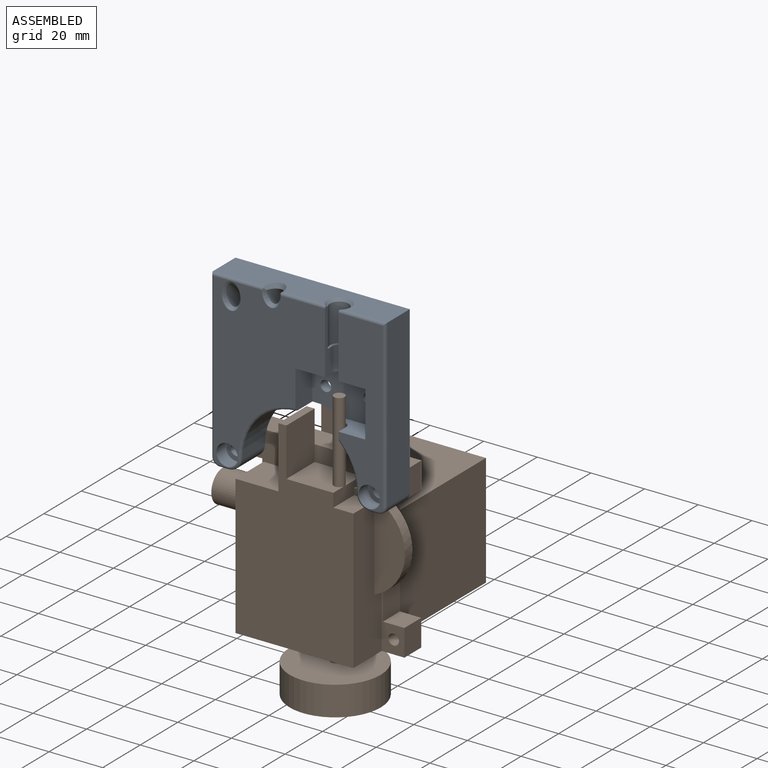
[diagram: assembled view]
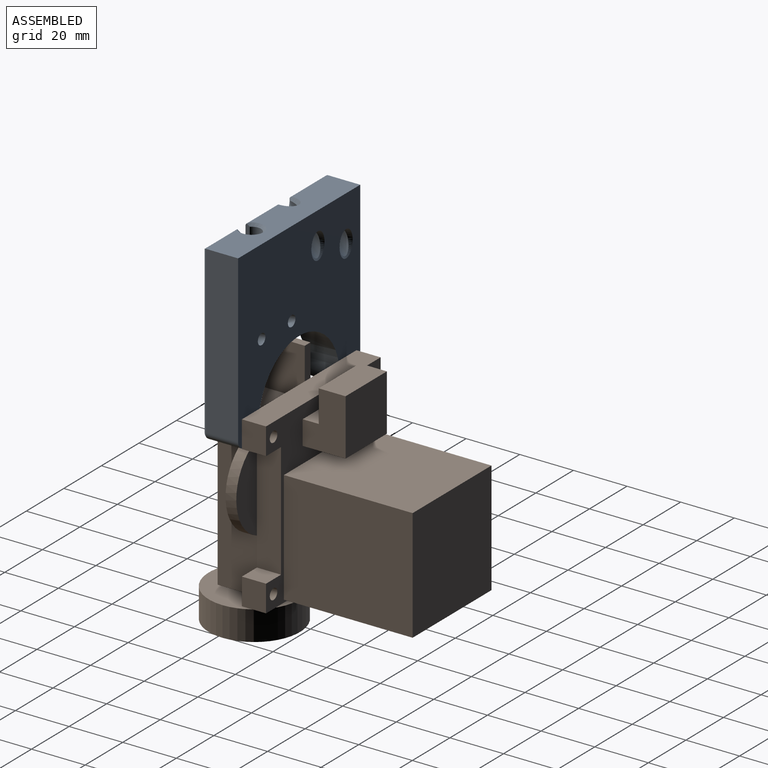
[diagram: assembled view, second angle]
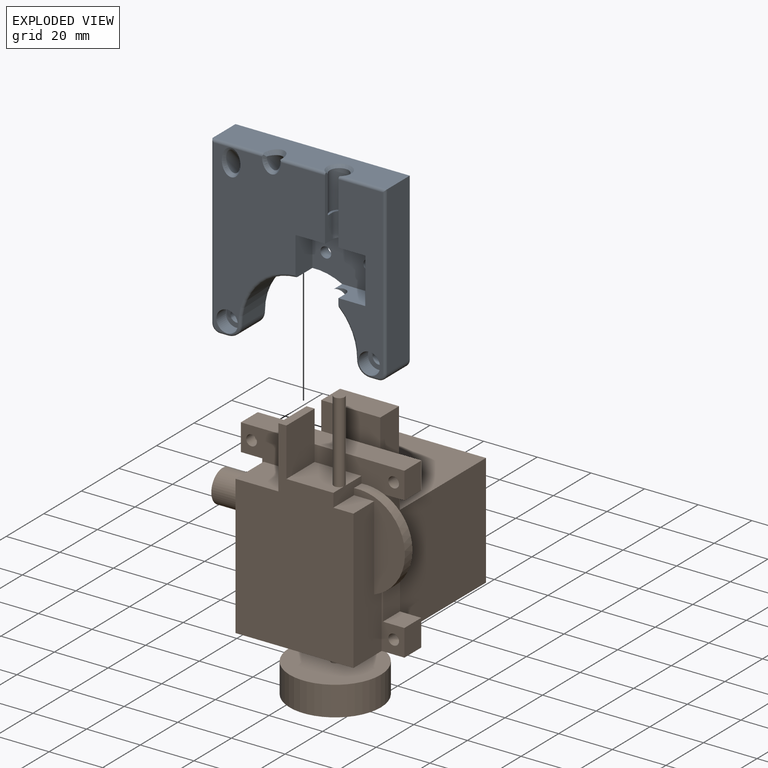
[diagram: exploded view]
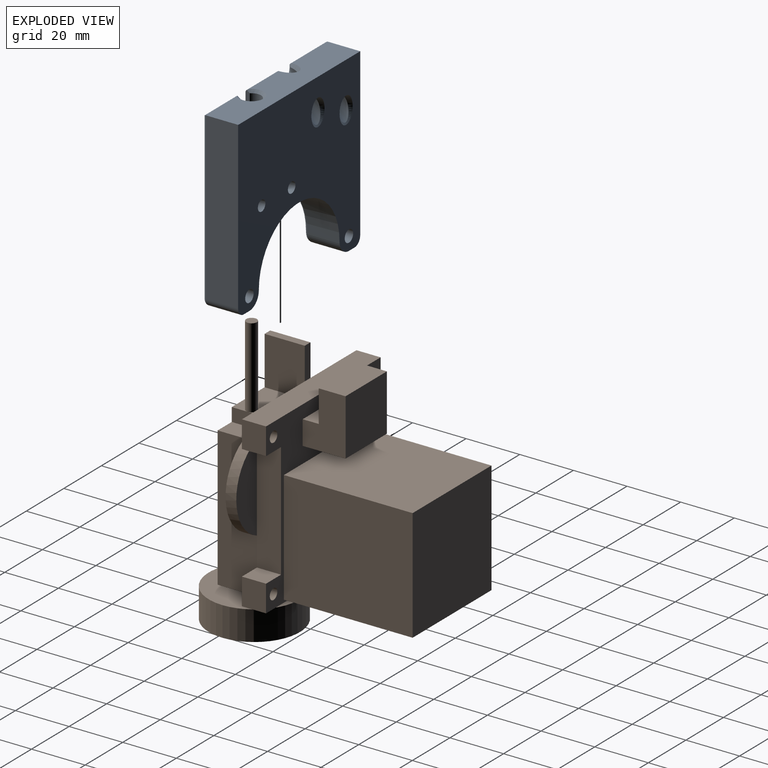
[diagram: exploded view, second angle]
ASSEMBLY  parts=2 mates=2
PART A: 54 faces, bbox 65.8x19.8x66.5 mm
  f0: plane 65.02x12.07mm, normal (0,0,1), area 696.1mm2, adj f6,f7,f10,f33,f39,f41,f47,f53
  f1: cylinder r=2.5mm len=9mm, axis (0,0,1), area 70.7mm2, adj f26,f27,f28,f32
  f2: plane 63.07x41.52mm, normal (0,-1,0), area 1577.2mm2, adj f3,f16,f26,f27,f37,f40,f41,f42
  f3: plane 14.54x9.02mm, normal (1,0,0), area 130.5mm2, adj f2,f17,f21,f26,f46
  f4: plane 17x9mm, normal (-1,0,0), area 153mm2, adj f9,f20,f21,f26
  f5: plane 12x3mm, normal (0,0,-1), area 36mm2, adj f10,f19,f24,f44
  f6: plane 62x12mm, normal (1,0,0), area 744mm2, adj f0,f10,f25,f48
  f7: plane 62x12mm, normal (-1,0,0), area 744mm2, adj f0,f10,f24,f42
  f8: plane 12x3mm, normal (0,0,-1), area 36mm2, adj f10,f18,f25,f50
  f9: plane 63x16.5mm, normal (0,-1,0), area 697.8mm2, adj f4,f13,f20,f26,f28,f29,f47,f48
  f10: plane 65.01x65.01mm, normal (0,1,0), area 3103.6mm2, adj f0,f5,f6,f7,f8,f11,f14,f17
  f11: cylinder r=2.25mm len=8mm, axis (0,-1,0), area 113.1mm2, adj f10,f12
  f12: plane 8x8mm, normal (0,-1,0), area 34.4mm2, adj f11,f13
  f13: cylinder r=4mm len=8mm, axis (0,-1,0), area 125.7mm2, adj f9,f12,f51
  f14: cylinder r=2.25mm len=8mm, axis (0,-1,0), area 113.1mm2, adj f10,f15
  f15: plane 8x8mm, normal (0,-1,0), area 34.4mm2, adj f14,f16
  f16: cylinder r=4mm len=8mm, axis (0,-1,0), area 125.7mm2, adj f2,f15,f45
  f17: cylinder r=21.5mm len=43mm, axis (0,-1,0), area 688.2mm2, adj f3,f10,f18,f19,f20,f21,f29,f30
  f18: cylinder r=5mm len=12mm, axis (0,1,0), area 94.2mm2, adj f8,f10,f17,f51
  f19: cylinder r=5mm len=12mm, axis (0,-1,0), area 94.2mm2, adj f5,f10,f17,f45
  f20: plane 14.94x9mm, normal (0,0,1), area 104.9mm2, adj f4,f9,f17,f21,f29,f30
  f21: plane 26x17mm, normal (0,-1,0), area 397.4mm2, adj f3,f4,f17,f20,f22,f23,f26
  f22: cylinder r=2mm len=4mm, axis (0,-1,0), area 50.3mm2, adj f10,f21
  f23: cylinder r=2mm len=4mm, axis (0,-1,0), area 50.3mm2, adj f10,f21
  f24: cylinder r=3mm len=12mm, axis (0,-1,0), area 56.5mm2, adj f5,f7,f10,f43
  f25: cylinder r=3mm len=12mm, axis (0,1,0), area 56.5mm2, adj f6,f8,f10,f49
  f26: plane 26x9mm, normal (0,0,-1), area 204.2mm2, adj f1,f2,f3,f4,f9,f21,f27,f28
  f27: plane 23.93x4.09mm, normal (1,0,0), area 58.4mm2, adj f1,f2,f26,f31,f32,f33,f53
  f28: plane 23.93x4.09mm, normal (-1,0,0), area 58.4mm2, adj f1,f9,f26,f31,f32,f33,f47
  f29: plane 4.32x3.91mm, normal (-1,0,0), area 14.1mm2, adj f9,f17,f20,f30,f52
  f30: cylinder r=2.5mm len=4.94mm, axis (0,0,1), area 13.1mm2, adj f17,f20,f29
  f31: cylinder r=3.5mm len=14mm, axis (0,0,1), area 229.9mm2, adj f27,f28,f32,f33
  f32: plane 7x5.95mm, normal (0,0,1), area 12.8mm2, adj f1,f27,f28,f31
  f33: cone r=3.5mm half-angle=45deg, axis (0,0,1), area 27.6mm2, adj f0,f27,f28,f31,f47,f53
  f34: cylinder r=2.5mm len=17.01mm, axis (0,-0.71,0.71), area 211.3mm2, adj f38,f39,f40
  f35: cylinder r=2.5mm len=19.49mm, axis (0,-0.71,0.71), area 244.4mm2, adj f36,f37
  f36: bspline ~9.9x7mm, area 33.1mm2, adj f10,f35
  f37: bspline ~9.9x7mm, area 33.1mm2, adj f2,f35
  f38: bspline ~9.9x7mm, area 33.1mm2, adj f10,f34
  f39: bspline ~7x5.69mm, area 21.3mm2, adj f0,f34,f40,f41,f53
  f40: bspline ~7x5.69mm, area 21.3mm2, adj f2,f34,f39,f41,f53
  f41: cylinder r=1mm len=19.36mm, axis (1,0,0), area 29.3mm2, adj f0,f2,f39,f40,f42
  f42: cylinder r=1mm len=62mm, axis (0,0,1), area 96.6mm2, adj f2,f7,f41,f43
  f43: torus R=2mm, axis (0,-1,0), area 6.5mm2, adj f2,f24,f42,f44
  f44: cylinder r=1mm len=3mm, axis (-1,0,0), area 4.7mm2, adj f2,f5,f43,f45
  f45: torus R=4mm, axis (0,-1,0), area 11.4mm2, adj f16,f19,f44,f46
  f46: torus R=22.5mm, axis (0,-1,0), area 52.4mm2, adj f2,f3,f17,f45
  f47: cylinder r=1mm len=17.5mm, axis (1,0,0), area 26.5mm2, adj f0,f9,f28,f33,f48
  f48: cylinder r=1mm len=62mm, axis (0,0,-1), area 96.6mm2, adj f6,f9,f47,f49
  f49: torus R=2mm, axis (0,-1,0), area 6.5mm2, adj f9,f25,f48,f50
  f50: cylinder r=1mm len=3mm, axis (-1,0,0), area 4.7mm2, adj f8,f9,f49,f51
  f51: torus R=4mm, axis (0,-1,0), area 11.4mm2, adj f13,f18,f50,f52
  f52: torus R=22.5mm, axis (0,-1,0), area 28.2mm2, adj f9,f17,f29,f51
  f53: cylinder r=1mm len=16.86mm, axis (1,0,0), area 26mm2, adj f0,f2,f27,f33,f39,f40
PART B: 57 faces, bbox 64.5x83x106 mm
  f0: plane 17.5x15mm, normal (0,0,1), area 249.9mm2, adj f1,f8,f21,f52,f54
  f1: plane 33.5x10mm, normal (0,-1,0), area 243.1mm2, adj f0,f18,f21,f27,f28,f29,f33,f54
  f2: plane 32.25x11mm, normal (0,1,0), area 258.8mm2, adj f18,f26,f27
  f3: plane 16x15mm, normal (0,0,1), area 240mm2, adj f6,f8,f20,f39
  f4: plane 52x15mm, normal (1,0,0), area 654.2mm2, adj f5,f7,f8,f18,f19,f22
  f5: plane 11x7.5mm, normal (0,0,1), area 82.5mm2, adj f4,f8,f19,f21
  f6: plane 52x15mm, normal (-1,0,0), area 666.9mm2, adj f3,f7,f8,f9,f39
  f7: plane 61x24mm, normal (0,0,-1), area 1201.9mm2, adj f4,f6,f8,f11,f22,f23,f24,f38
  f8: plane 75x44mm, normal (0,-1,0), area 2444.5mm2, adj f0,f3,f4,f5,f6,f7,f20,f21
  f9: cylinder r=6mm len=12mm, axis (1,0,0), area 339.3mm2, adj f6,f10
  f10: plane 12x12mm, normal (-1,0,0), area 113.1mm2, adj f9
  f11: cylinder r=1.5mm len=3mm, axis (0,0,1), area 28.3mm2, adj f7,f14
  f12: cylinder r=17mm len=34mm, axis (0,0,1), area 1175mm2, adj f13,f14
  f13: plane 34x34mm, normal (0,0,-1), area 857.7mm2, adj f12,f15
  f14: plane 34x34mm, normal (0,0,1), area 900.9mm2, adj f11,f12
  f15: cylinder r=4mm len=8mm, axis (0,0,1), area 37.7mm2, adj f13,f17
  f16: plane 1x1mm, normal (0,0,-1), area 0.8mm2, adj f17
  f17: cone r=0.5mm half-angle=45deg, axis (0,0,1), area 70mm2, adj f15,f16
  f18: cylinder r=17.5mm len=33.94mm, axis (0,1,0), area 201.4mm2, adj f1,f2,f4,f19,f21,f22
  f19: plane 33.94x19mm, normal (0,-1,0), area 291.9mm2, adj f4,f5,f18,f21
  f20: plane 23x15mm, normal (-1,0,0), area 345mm2, adj f3,f8,f39,f55,f56
  f21: plane 15x5mm, normal (1,0,0), area 65.3mm2, adj f0,f1,f5,f8,f18,f19
  f22: plane 20.75x8.5mm, normal (0,-1,0), area 77.8mm2, adj f4,f7,f18,f24,f25,f26,f37
  f23: plane 10x9mm, normal (-1,0,0), area 90mm2, adj f7,f36,f38,f39
  f24: plane 10x9mm, normal (1,0,0), area 90mm2, adj f7,f22,f25,f38
  f25: plane 9x8mm, normal (0,0,1), area 72mm2, adj f22,f24,f26,f38
  f26: plane 43x9mm, normal (1,0,0), area 387mm2, adj f2,f22,f25,f27,f38
  f27: plane 9x8mm, normal (0,0,-1), area 72mm2, adj f1,f2,f26,f28,f38
  f28: plane 10x9mm, normal (1,0,0), area 90mm2, adj f1,f27,f29,f38
  f29: plane 61x9mm, normal (0,0,1), area 549mm2, adj f1,f28,f30,f38,f39,f55
  f30: plane 10x9mm, normal (-1,0,0), area 90mm2, adj f29,f31,f38,f39
  f31: plane 9x8mm, normal (0,0,-1), area 72mm2, adj f30,f32,f38,f39
  f32: plane 43x9mm, normal (-1,0,0), area 387mm2, adj f31,f36,f38,f39
  f33: cylinder r=2mm len=9mm, axis (0,-1,0), area 113.1mm2, adj f1,f38
  f34: cylinder r=2mm len=9mm, axis (0,-1,0), area 113.1mm2, adj f38,f39
  f35: cylinder r=2mm len=9mm, axis (0,-1,0), area 113.1mm2, adj f38,f39
  f36: plane 9x8mm, normal (0,0,1), area 72mm2, adj f23,f32,f38,f39
  f37: cylinder r=2mm len=9mm, axis (0,-1,0), area 113.1mm2, adj f22,f38
  f38: plane 63x61mm, normal (0,1,0), area 1142.7mm2, adj f7,f23,f24,f25,f26,f27,f28,f29
  f39: plane 63x24.5mm, normal (0,-1,0), area 342.4mm2, adj f3,f6,f7,f20,f23,f29,f30,f31
  f40: plane 48x42mm, normal (-1,0,0), area 2016mm2, adj f38,f41,f43,f44
  f41: plane 48x42mm, normal (0,0,1), area 2016mm2, adj f38,f40,f42,f44
  f42: plane 48x42mm, normal (1,0,0), area 2016mm2, adj f38,f41,f43,f44
  f43: plane 48x42mm, normal (0,0,-1), area 2016mm2, adj f38,f40,f42,f44
  f44: plane 42x42mm, normal (0,1,0), area 1764mm2, adj f40,f41,f42,f43
  f45: plane 22x16mm, normal (0,0,-1), area 352mm2, adj f38,f46,f50,f51
  f46: plane 22x21mm, normal (0,1,0), area 462mm2, adj f45,f47,f50,f51
  f47: plane 22x10mm, normal (0,0,1), area 220mm2, adj f46,f48,f50,f51
  f48: plane 22x12mm, normal (0,-1,0), area 264mm2, adj f47,f49,f50,f51
  f49: plane 22x6mm, normal (0,0,1), area 132mm2, adj f38,f48,f50,f51
  f50: plane 21x16mm, normal (1,0,0), area 264mm2, adj f38,f45,f46,f47,f48,f49
  f51: plane 21x16mm, normal (-1,0,0), area 264mm2, adj f38,f45,f46,f47,f48,f49
  f52: cylinder r=2mm len=30mm, axis (0,0,-1), area 377mm2, adj f0,f53
  f53: plane 4x4mm, normal (0,0,1), area 12.6mm2, adj f52
  f54: plane 18x15mm, normal (1,0,0), area 270mm2, adj f0,f1,f8,f55,f56
  f55: plane 12x3mm, normal (0,1,0), area 36mm2, adj f20,f29,f54,f56
  f56: plane 15x3mm, normal (0,0,1), area 45mm2, adj f8,f20,f54,f55
PLACE A t=(-14,0,21.02)mm
PLACE B t=(-14,0,-25.98)mm
MATE planar A.f10 <-> B.f39  axis (0,1,0) through (-13.48,0,39.7)mm
MATE cylindrical A.f14 <-> B.f34  axis (0,-1,0) through (-40.5,-8,6.02)mm
